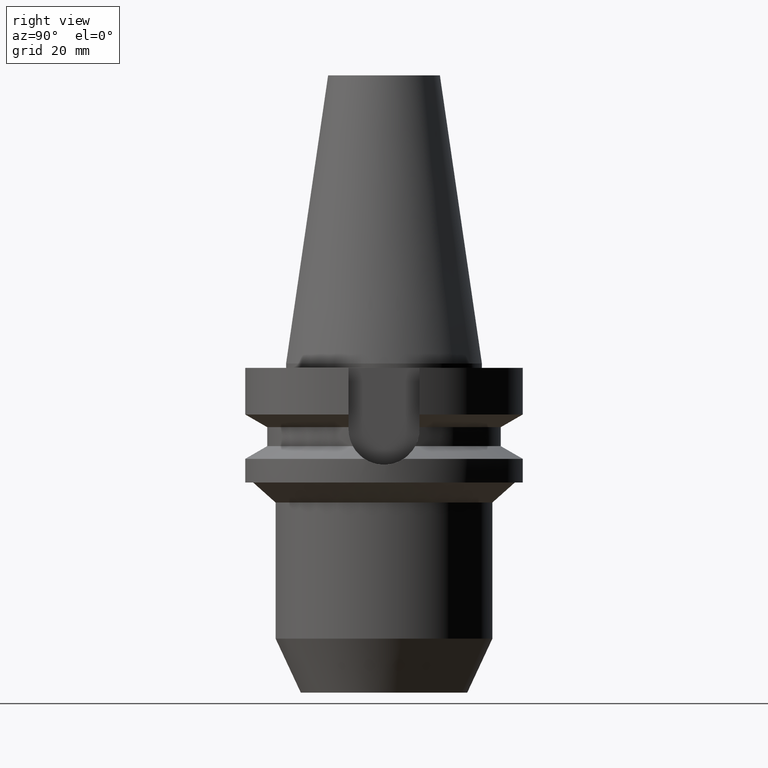
[diagram: clean part render]
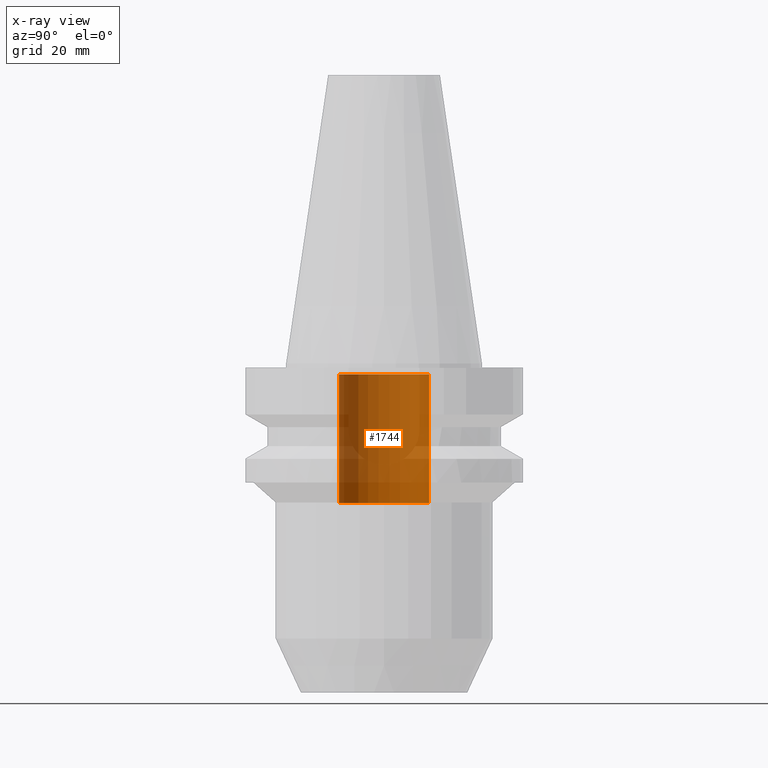
[diagram: x-ray — body ghosted, one internal face saturated and labeled with its STEP entity id]
A machine part, right view, then the same camera in x-ray: the body is ghosted and one INTERNAL B-rep face — a face not visible from any outside direction — is saturated and labeled: STEP entity #1744.
In plain terms, the highlighted cylindrical surface (partial cylindrical patch) has radius 10.25 mm, axis along (0, 0, -1).
Its self-contained STEP definition (entity closure, byte-faithful):
#780=CARTESIAN_POINT('',(0.E0,2.111352314070E-14,-3.17E1));
#781=DIRECTION('',(0.E0,0.E0,-1.E0));
#782=DIRECTION('',(0.E0,-1.E0,0.E0));
#783=AXIS2_PLACEMENT_3D('',#780,#781,#782);
#812=DIRECTION('',(0.E0,0.E0,1.E0));
#813=VECTOR('',#812,2.92E1);
#814=CARTESIAN_POINT('',(0.E0,-1.025E1,-3.17E1));
#815=LINE('',#814,#813);
#819=DIRECTION('',(0.E0,0.E0,1.E0));
#820=VECTOR('',#819,2.92E1);
#821=CARTESIAN_POINT('',(0.E0,1.025E1,-3.17E1));
#822=LINE('',#821,#820);
#834=CARTESIAN_POINT('',(0.E0,2.111352314070E-14,-2.5E0));
#835=DIRECTION('',(0.E0,0.E0,1.E0));
#836=DIRECTION('',(0.E0,1.E0,0.E0));
#837=AXIS2_PLACEMENT_3D('',#834,#835,#836);
#1026=CARTESIAN_POINT('',(0.E0,-1.025E1,-2.5E0));
#1027=CARTESIAN_POINT('',(0.E0,1.025E1,-2.5E0));
#1028=VERTEX_POINT('',#1026);
#1029=VERTEX_POINT('',#1027);
#1030=CARTESIAN_POINT('',(0.E0,1.025E1,-3.17E1));
#1031=VERTEX_POINT('',#1030);
#1032=CARTESIAN_POINT('',(0.E0,-1.025E1,-3.17E1));
#1033=VERTEX_POINT('',#1032);
#1730=CARTESIAN_POINT('',(0.E0,2.111352314070E-14,7.2405E1));
#1731=DIRECTION('',(0.E0,0.E0,-1.E0));
#1732=DIRECTION('',(0.E0,-1.E0,0.E0));
#1733=AXIS2_PLACEMENT_3D('',#1730,#1731,#1732);
#1734=CYLINDRICAL_SURFACE('',#1733,1.025E1);
#1736=ORIENTED_EDGE('',*,*,#1735,.F.);
#1737=ORIENTED_EDGE('',*,*,#1719,.F.);
#1739=ORIENTED_EDGE('',*,*,#1738,.T.);
#1741=ORIENTED_EDGE('',*,*,#1740,.F.);
#1742=EDGE_LOOP('',(#1736,#1737,#1739,#1741));
#1743=FACE_OUTER_BOUND('',#1742,.F.);
#784=CIRCLE('',#783,1.025E1);
#838=CIRCLE('',#837,1.025E1);
#1719=EDGE_CURVE('',#1033,#1031,#784,.T.);
#1735=EDGE_CURVE('',#1031,#1029,#822,.T.);
#1738=EDGE_CURVE('',#1033,#1028,#815,.T.);
#1740=EDGE_CURVE('',#1029,#1028,#838,.T.);
#1744=ADVANCED_FACE('',(#1743),#1734,.F.);